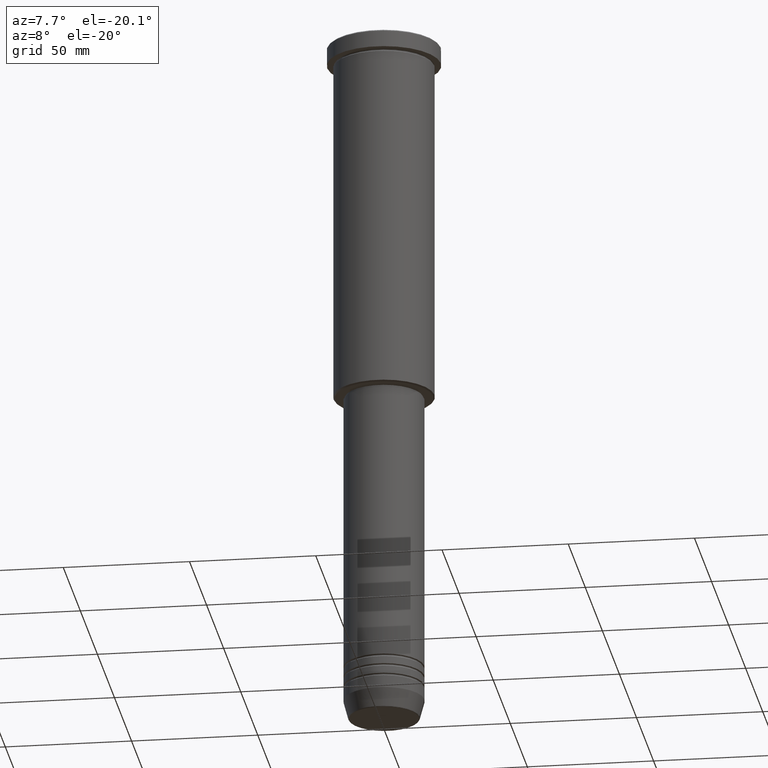
[diagram: clean part render]
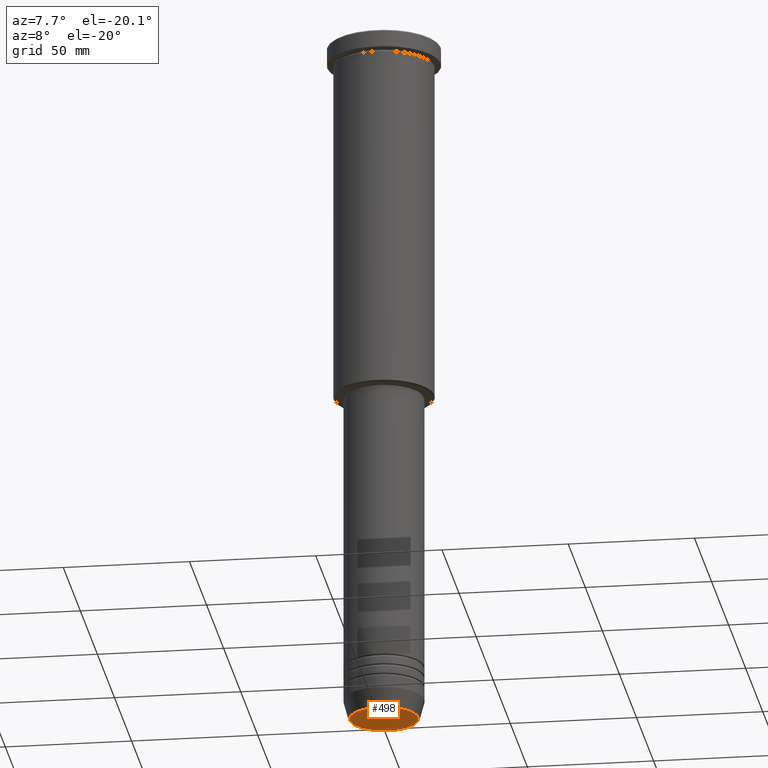
[diagram: same view with one face highlighted and labeled with its STEP entity id]
A machine part, auxiliary view. The second image highlights one B-rep face of the part: STEP entity #498.
In plain terms, the highlighted planar face has unit normal (0, -0, 1).
Its self-contained STEP definition (entity closure, byte-faithful):
#27 = DIRECTION ( 'NONE',  ( 0.000000000000000000, 0.000000000000000000, -1.000000000000000000 ) ) ;
#60 = VERTEX_POINT ( 'NONE', #1161 ) ;
#92 = AXIS2_PLACEMENT_3D ( 'NONE', #577, #855, #760 ) ;
#115 = VERTEX_POINT ( 'NONE', #1087 ) ;
#272 = FACE_OUTER_BOUND ( 'NONE', #1024, .T. ) ;
#295 = DIRECTION ( 'NONE',  ( 1.000000000000000000, 0.000000000000000000, 0.000000000000000000 ) ) ;
#480 = ORIENTED_EDGE ( 'NONE', *, *, #646, .T. ) ;
#498 = ADVANCED_FACE ( 'NONE', ( #272 ), #634, .F. ) ;
#561 = AXIS2_PLACEMENT_3D ( 'NONE', #992, #641, #997 ) ;
#577 = CARTESIAN_POINT ( 'NONE',  ( 0.000000000000000000, 0.000000000000000000, -280.0000000000000000 ) ) ;
#634 = PLANE ( 'NONE',  #561 ) ;
#641 = DIRECTION ( 'NONE',  ( 0.000000000000000000, -0.000000000000000000, 1.000000000000000000 ) ) ;
#646 = EDGE_CURVE ( 'NONE', #115, #60, #970, .T. ) ;
#667 = EDGE_CURVE ( 'NONE', #60, #115, #1107, .T. ) ;
#679 = CARTESIAN_POINT ( 'NONE',  ( 0.000000000000000000, 0.000000000000000000, -280.0000000000000000 ) ) ;
#760 = DIRECTION ( 'NONE',  ( 1.000000000000000000, 0.000000000000000000, 0.000000000000000000 ) ) ;
#837 = ORIENTED_EDGE ( 'NONE', *, *, #667, .T. ) ;
#855 = DIRECTION ( 'NONE',  ( 0.000000000000000000, 0.000000000000000000, -1.000000000000000000 ) ) ;
#954 = AXIS2_PLACEMENT_3D ( 'NONE', #679, #27, #295 ) ;
#970 = CIRCLE ( 'NONE', #954, 13.60671756277709399 ) ;
#992 = CARTESIAN_POINT ( 'NONE',  ( 0.000000000000000000, 0.000000000000000000, -280.0000000000000000 ) ) ;
#997 = DIRECTION ( 'NONE',  ( 1.000000000000000000, 0.000000000000000000, 0.000000000000000000 ) ) ;
#1024 = EDGE_LOOP ( 'NONE', ( #480, #837 ) ) ;
#1087 = CARTESIAN_POINT ( 'NONE',  ( 13.60671756277709399, 0.000000000000000000, -280.0000000000000000 ) ) ;
#1107 = CIRCLE ( 'NONE', #92, 13.60671756277709399 ) ;
#1161 = CARTESIAN_POINT ( 'NONE',  ( -13.60671756277709399, 1.695915260300171258E-15, -280.0000000000000000 ) ) ;